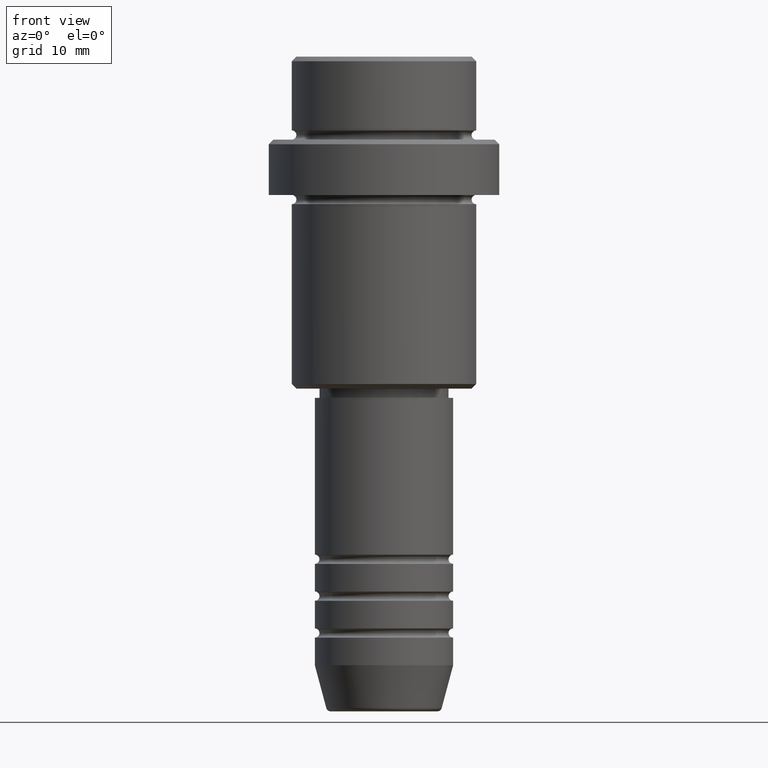
[diagram: clean part render]
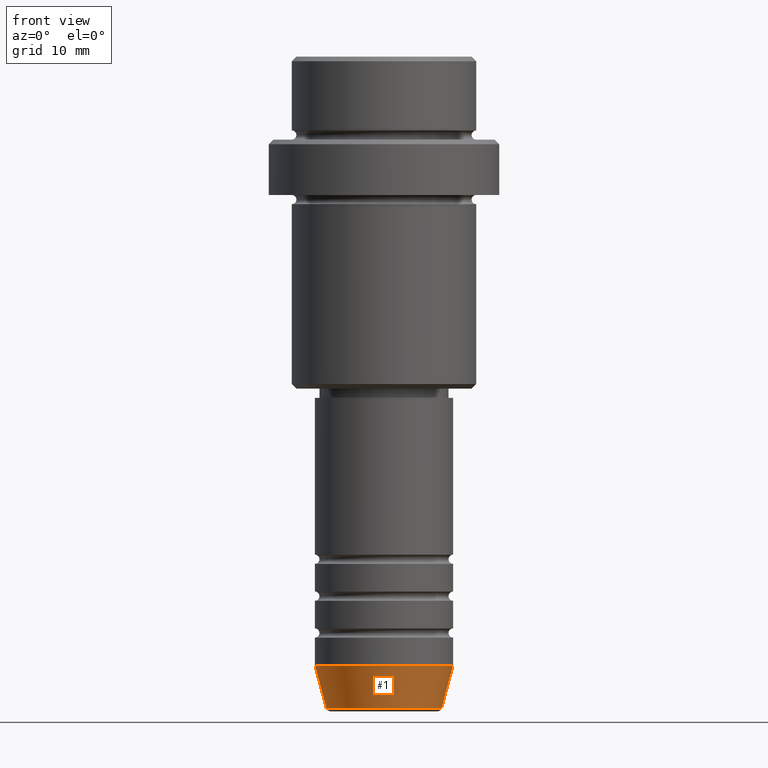
[diagram: same view with one face highlighted and labeled with its STEP entity id]
A machine part, front view. The second image highlights one B-rep face of the part: STEP entity #1.
In plain terms, the highlighted conical surface has half-angle 15 deg.
Its self-contained STEP definition (entity closure, byte-faithful):
#1 = ADVANCED_FACE ( 'NONE', ( #732 ), #950, .T. ) ;
#34 = EDGE_CURVE ( 'NONE', #1280, #1415, #197, .T. ) ;
#54 = ORIENTED_EDGE ( 'NONE', *, *, #1299, .T. ) ;
#82 = EDGE_CURVE ( 'NONE', #1397, #805, #632, .T. ) ;
#114 = AXIS2_PLACEMENT_3D ( 'NONE', #1277, #1169, #185 ) ;
#135 = CARTESIAN_POINT ( 'NONE',  ( -7.500000000000000000, 9.184850993605147944E-16, -66.00000000000000000 ) ) ;
#165 = CARTESIAN_POINT ( 'NONE',  ( -7.500000000000000000, 9.184850993605147944E-16, -66.00000000000000000 ) ) ;
#185 = DIRECTION ( 'NONE',  ( 1.000000000000000000, 0.000000000000000000, 0.000000000000000000 ) ) ;
#190 = AXIS2_PLACEMENT_3D ( 'NONE', #521, #511, #714 ) ;
#197 = LINE ( 'NONE', #1166, #1009 ) ;
#211 = CARTESIAN_POINT ( 'NONE',  ( 6.259553456999438659, 0.000000000000000000, -70.62940952255127058 ) ) ;
#260 = CIRCLE ( 'NONE', #190, 7.500000000000000000 ) ;
#303 = DIRECTION ( 'NONE',  ( 0.2588190451025213501, 0.000000000000000000, 0.9659258262890680902 ) ) ;
#448 = CIRCLE ( 'NONE', #1107, 6.259553456999438659 ) ;
#461 = EDGE_CURVE ( 'NONE', #805, #1415, #260, .T. ) ;
#481 = ORIENTED_EDGE ( 'NONE', *, *, #82, .F. ) ;
#498 = ORIENTED_EDGE ( 'NONE', *, *, #461, .F. ) ;
#511 = DIRECTION ( 'NONE',  ( -0.000000000000000000, -0.000000000000000000, 1.000000000000000000 ) ) ;
#521 = CARTESIAN_POINT ( 'NONE',  ( 0.000000000000000000, 0.000000000000000000, -66.00000000000000000 ) ) ;
#524 = CARTESIAN_POINT ( 'NONE',  ( 0.000000000000000000, 0.000000000000000000, -70.62940952255127058 ) ) ;
#632 = LINE ( 'NONE', #165, #1100 ) ;
#714 = DIRECTION ( 'NONE',  ( 1.000000000000000000, 0.000000000000000000, 0.000000000000000000 ) ) ;
#715 = EDGE_LOOP ( 'NONE', ( #481, #54, #1102, #498 ) ) ;
#716 = DIRECTION ( 'NONE',  ( -0.2588190451025213501, 3.169619151431772337E-17, 0.9659258262890680902 ) ) ;
#732 = FACE_OUTER_BOUND ( 'NONE', #715, .T. ) ;
#767 = DIRECTION ( 'NONE',  ( 1.000000000000000000, 0.000000000000000000, 0.000000000000000000 ) ) ;
#805 = VERTEX_POINT ( 'NONE', #135 ) ;
#911 = CARTESIAN_POINT ( 'NONE',  ( 7.500000000000000000, 0.000000000000000000, -66.00000000000000000 ) ) ;
#950 = CONICAL_SURFACE ( 'NONE', #114, 7.500000000000000000, 0.2617993877991500740 ) ;
#1009 = VECTOR ( 'NONE', #303, 1000.000000000000000 ) ;
#1092 = DIRECTION ( 'NONE',  ( -0.000000000000000000, -0.000000000000000000, 1.000000000000000000 ) ) ;
#1100 = VECTOR ( 'NONE', #716, 1000.000000000000000 ) ;
#1102 = ORIENTED_EDGE ( 'NONE', *, *, #34, .T. ) ;
#1107 = AXIS2_PLACEMENT_3D ( 'NONE', #524, #1092, #767 ) ;
#1166 = CARTESIAN_POINT ( 'NONE',  ( 7.500000000000000000, 0.000000000000000000, -66.00000000000000000 ) ) ;
#1169 = DIRECTION ( 'NONE',  ( -0.000000000000000000, -0.000000000000000000, 1.000000000000000000 ) ) ;
#1277 = CARTESIAN_POINT ( 'NONE',  ( 0.000000000000000000, 0.000000000000000000, -66.00000000000000000 ) ) ;
#1280 = VERTEX_POINT ( 'NONE', #211 ) ;
#1299 = EDGE_CURVE ( 'NONE', #1397, #1280, #448, .T. ) ;
#1336 = CARTESIAN_POINT ( 'NONE',  ( -6.259553456999439547, 8.425296549405630472E-16, -70.62940952255127058 ) ) ;
#1397 = VERTEX_POINT ( 'NONE', #1336 ) ;
#1415 = VERTEX_POINT ( 'NONE', #911 ) ;